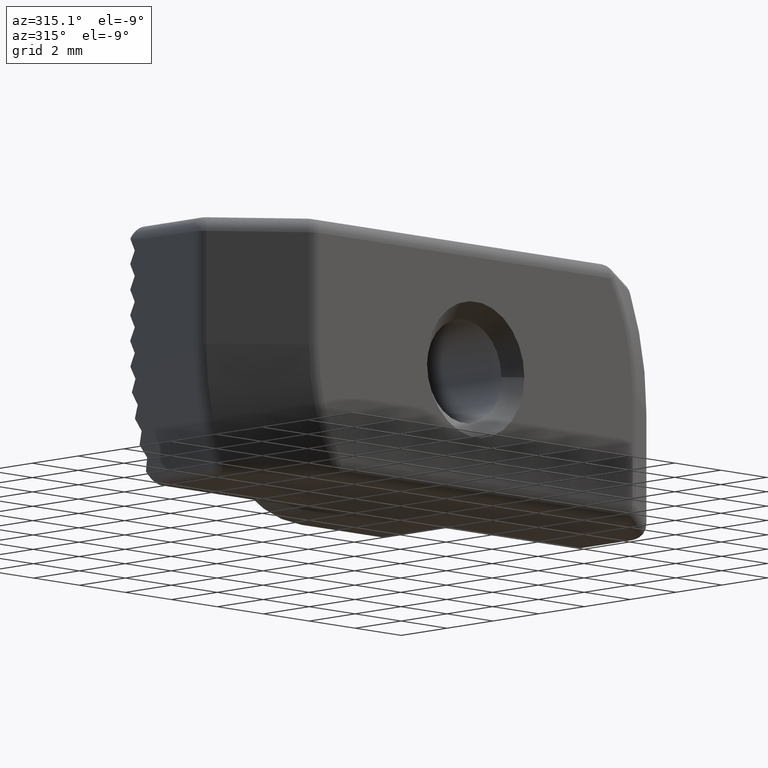
[diagram: clean part render]
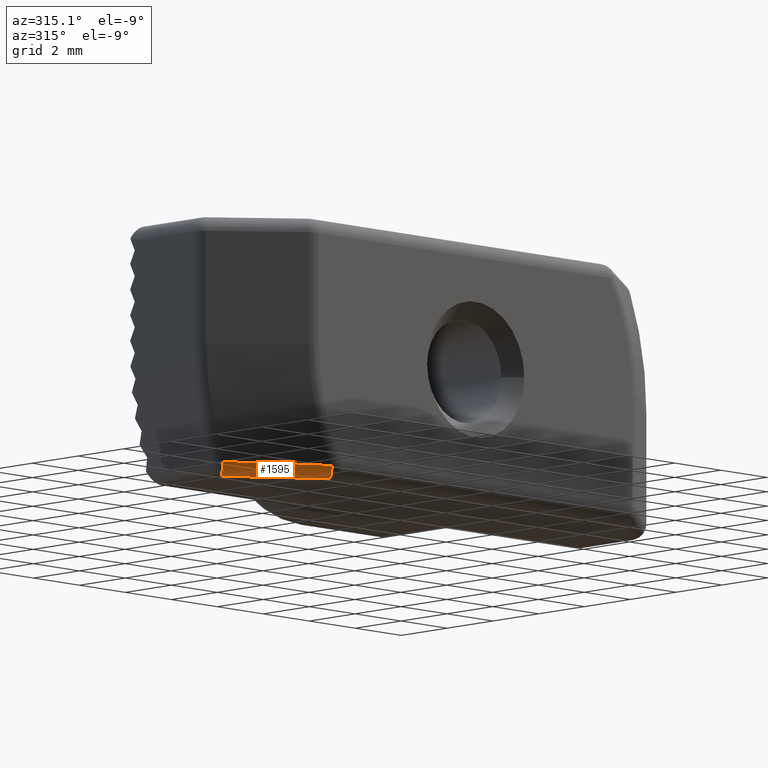
[diagram: same view with one face highlighted and labeled with its STEP entity id]
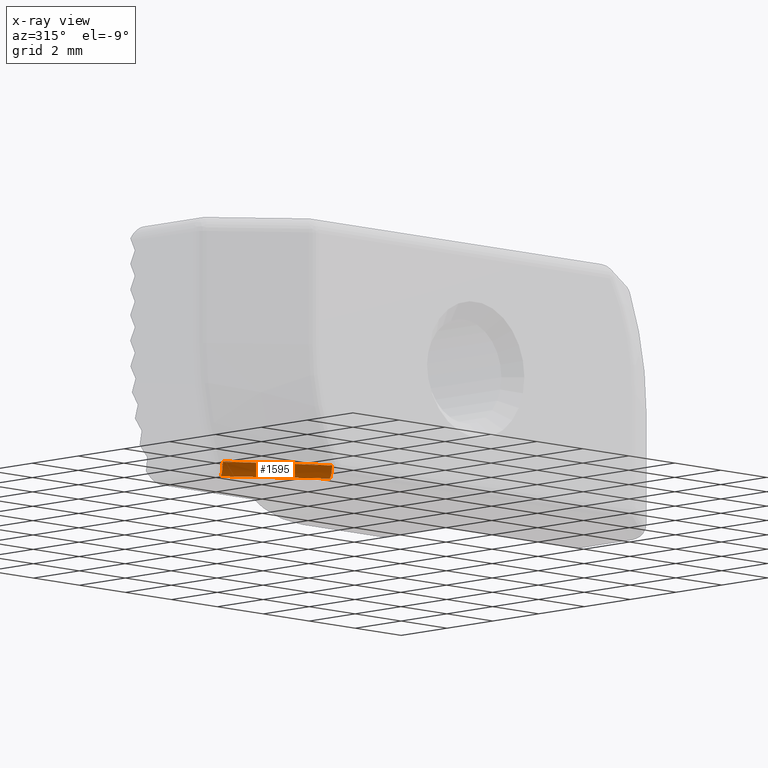
[diagram: x-ray of the same camera — body ghosted, the highlighted face saturated]
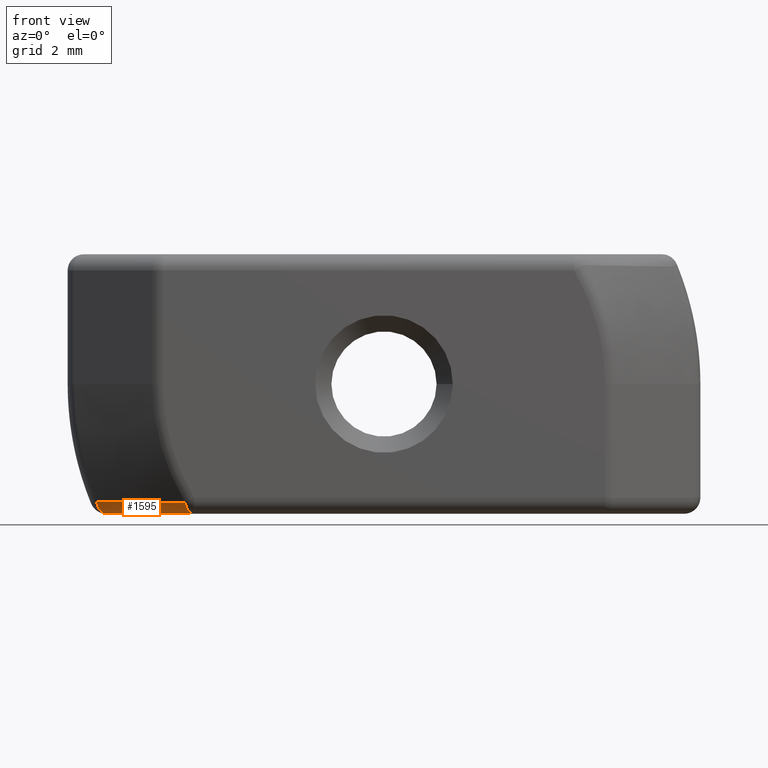
[diagram: same view with one face highlighted and labeled with its STEP entity id]
A machine part, auxiliary view. The second image highlights one B-rep face of the part: STEP entity #1595.
The next image is the same camera in x-ray: the body ghosted, the highlighted face saturated — about 0% of this face is hidden behind the body in this view.
A second angle (front view) of the same face is appended — the face is thin or edge-on in the first view.
In plain terms, the highlighted face is a freeform B-spline surface patch.
Its self-contained STEP definition (entity closure, byte-faithful):
#15=B_SPLINE_SURFACE_WITH_KNOTS('',3,3,((#2630,#2631,#2632,#2633),(#2634,
#2635,#2636,#2637),(#2638,#2639,#2640,#2641),(#2642,#2643,#2644,#2645),
(#2646,#2647,#2648,#2649)),.UNSPECIFIED.,.F.,.F.,.F.,(4,1,4),(4,4),(0.,
0.5,1.),(0.176231007186256,0.515121076214052),.UNSPECIFIED.);
#33=B_SPLINE_CURVE_WITH_KNOTS('',3,(#2470,#2471,#2472,#2473),
 .UNSPECIFIED.,.F.,.F.,(4,4),(-0.515121076214052,-0.176231007186256),
 .UNSPECIFIED.);
#36=B_SPLINE_CURVE_WITH_KNOTS('',3,(#2650,#2651,#2652,#2653),
 .UNSPECIFIED.,.F.,.F.,(4,4),(0.176231007186256,0.515121076214052),
 .UNSPECIFIED.);
#458=FACE_OUTER_BOUND('',#562,.T.);
#562=EDGE_LOOP('',(#1219,#1220,#1221,#1222));
#660=CIRCLE('',#1735,0.5);
#667=CIRCLE('',#1744,0.5);
#713=VERTEX_POINT('',#2467);
#714=VERTEX_POINT('',#2469);
#763=VERTEX_POINT('',#2611);
#765=VERTEX_POINT('',#2621);
#862=EDGE_CURVE('',#714,#713,#33,.T.);
#928=EDGE_CURVE('',#763,#714,#660,.F.);
#935=EDGE_CURVE('',#713,#765,#667,.F.);
#939=EDGE_CURVE('',#765,#763,#36,.T.);
#1219=ORIENTED_EDGE('',*,*,#928,.T.);
#1220=ORIENTED_EDGE('',*,*,#862,.T.);
#1221=ORIENTED_EDGE('',*,*,#935,.T.);
#1222=ORIENTED_EDGE('',*,*,#939,.T.);
#1595=ADVANCED_FACE('',(#458),#15,.F.);
#1735=AXIS2_PLACEMENT_3D('',#2612,#2051,#2052);
#1744=AXIS2_PLACEMENT_3D('',#2623,#2069,#2070);
#2051=DIRECTION('center_axis',(-0.790728568232243,0.612166914641249,-5.55046566136666E-15));
#2052=DIRECTION('ref_axis',(-0.593856222930782,-0.767076870152409,-0.242750616402041));
#2069=DIRECTION('center_axis',(0.812392826720556,-0.583110534198264,0.));
#2070=DIRECTION('ref_axis',(0.,0.,-1.));
#2467=CARTESIAN_POINT('',(-5.8516264483766,-4.8,-4.));
#2469=CARTESIAN_POINT('',(-8.56227189477185,-2.76635666290024,-4.));
#2470=CARTESIAN_POINT('Ctrl Pts',(-8.56227189477186,-2.76635666290024,-4.));
#2471=CARTESIAN_POINT('Ctrl Pts',(-7.66905012195268,-3.45787185373182,-4.));
#2472=CARTESIAN_POINT('Ctrl Pts',(-6.76931436176929,-4.14131189762828,-4.));
#2473=CARTESIAN_POINT('Ctrl Pts',(-5.85162644837422,-4.79999999999948,-4.));
#2611=CARTESIAN_POINT('',(-8.85920000623724,-3.14989509797645,-3.62137530820102));
#2612=CARTESIAN_POINT('Origin',(-8.56227189477186,-2.76635666290024,-3.5));
#2621=CARTESIAN_POINT('',(-6.12691851695136,-5.18353843507569,-3.66465887706958));
#2623=CARTESIAN_POINT('Origin',(-5.85162644837608,-4.79999999999815,-3.5));
#2630=CARTESIAN_POINT('Ctrl Pts',(-6.12691851695136,-5.18353843507569,-3.66465887706958));
#2631=CARTESIAN_POINT('Ctrl Pts',(-7.05598203125331,-4.52485033270448,-3.64564008646021));
#2632=CARTESIAN_POINT('Ctrl Pts',(-7.96154343151435,-3.84141028880802,-3.63222444525791));
#2633=CARTESIAN_POINT('Ctrl Pts',(-8.85920000623725,-3.14989509797645,-3.62137530820102));
#2634=CARTESIAN_POINT('Ctrl Pts',(-6.10715212142671,-5.15599978332372,-3.76185171352134));
#2635=CARTESIAN_POINT('Ctrl Pts',(-7.03735159510652,-4.50002049906944,-3.74738092423027));
#2636=CARTESIAN_POINT('Ctrl Pts',(-7.94406483263591,-3.81852243509327,-3.73697325160384));
#2637=CARTESIAN_POINT('Ctrl Pts',(-8.84278427812844,-3.12869110136455,-3.72853745688139));
#2638=CARTESIAN_POINT('Ctrl Pts',(-6.03151279961588,-5.05061866113051,-3.93431349415329));
#2639=CARTESIAN_POINT('Ctrl Pts',(-6.95993258387205,-4.39653120096069,-3.92986463030225));
#2640=CARTESIAN_POINT('Ctrl Pts',(-7.86636785944511,-3.71665086305611,-3.9266488785926));
#2641=CARTESIAN_POINT('Ctrl Pts',(-8.76486912335974,-3.02804904231117,-3.92397102360293));
#2642=CARTESIAN_POINT('Ctrl Pts',(-5.9116487073512,-4.88362334373311,-4.));
#2643=CARTESIAN_POINT('Ctrl Pts',(-6.83293793473537,-4.2264951650478,-4.00005199851691));
#2644=CARTESIAN_POINT('Ctrl Pts',(-7.73489619088206,-3.54423003961614,-3.99996406628308));
#2645=CARTESIAN_POINT('Ctrl Pts',(-8.62989573174543,-2.85370555175651,-4.));
#2646=CARTESIAN_POINT('Ctrl Pts',(-5.85162644837422,-4.79999999999948,-4.));
#2647=CARTESIAN_POINT('Ctrl Pts',(-6.76931436176929,-4.14131189762828,-4.));
#2648=CARTESIAN_POINT('Ctrl Pts',(-7.66905012195268,-3.45787185373182,-4.));
#2649=CARTESIAN_POINT('Ctrl Pts',(-8.56227189477186,-2.76635666290024,-4.));
#2650=CARTESIAN_POINT('Ctrl Pts',(-6.12691851695136,-5.18353843507569,-3.66465887706958));
#2651=CARTESIAN_POINT('Ctrl Pts',(-7.05598203125331,-4.52485033270448,-3.64564008646021));
#2652=CARTESIAN_POINT('Ctrl Pts',(-7.96154343151435,-3.84141028880802,-3.63222444525791));
#2653=CARTESIAN_POINT('Ctrl Pts',(-8.85920000623725,-3.14989509797645,-3.62137530820102));